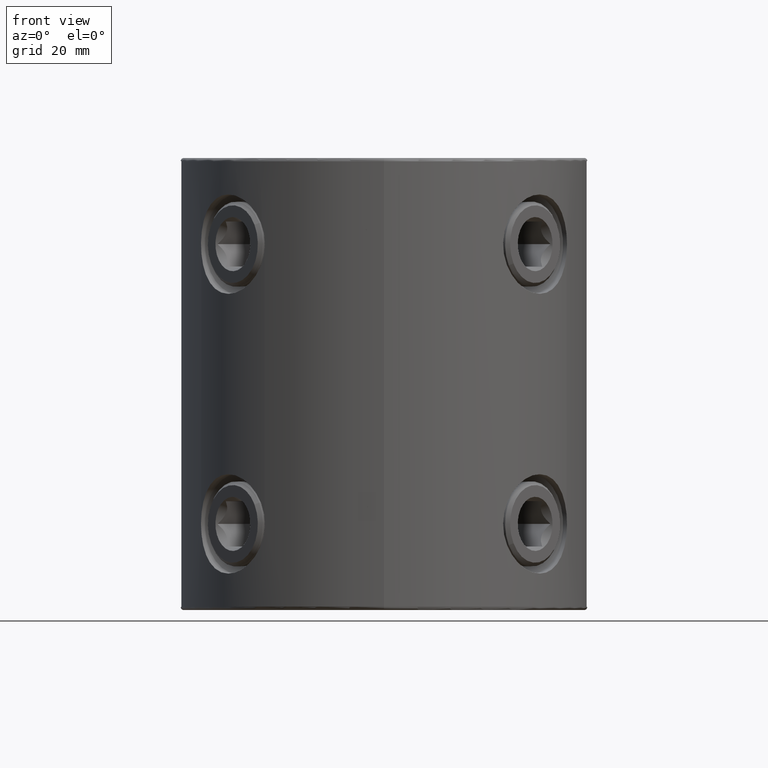
[diagram: clean part render]
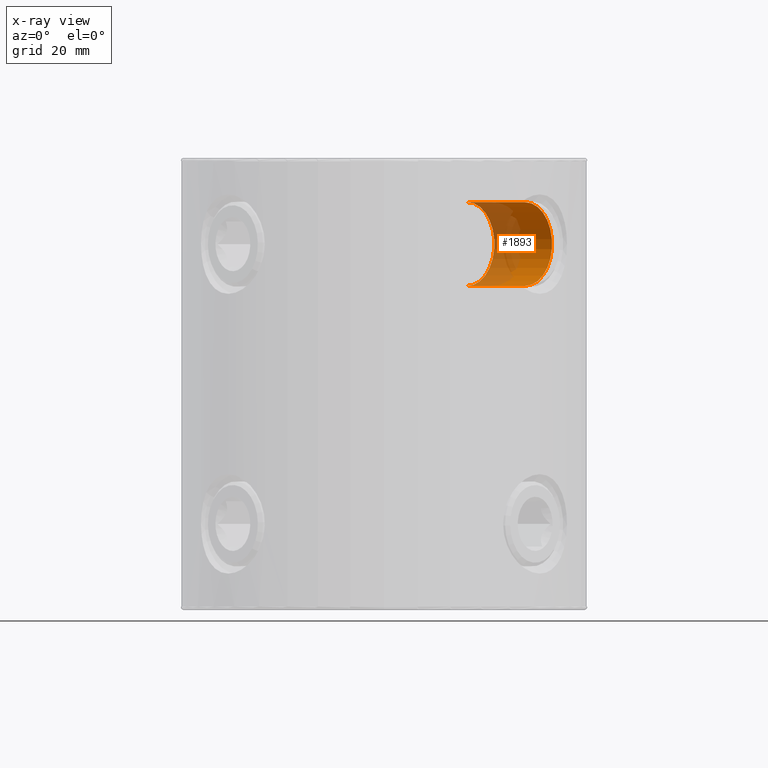
[diagram: x-ray — body ghosted, one internal face saturated and labeled with its STEP entity id]
A machine part, front view, then the same camera in x-ray: the body is ghosted and one INTERNAL B-rep face — a face not visible from any outside direction — is saturated and labeled: STEP entity #1893.
In plain terms, the highlighted cylindrical surface (partial cylindrical patch) has radius 9.263 mm, axis along (0.766, -0.6428, -0).
Its self-contained STEP definition (entity closure, byte-faithful):
#1429=EDGE_CURVE('NONE',#1575,#2281,#3576,.T.);
#1575=VERTEX_POINT('NONE',#3732);
#1893=ADVANCED_FACE('NONE',(#4094),#4095,.F.);
#1983=EDGE_CURVE('NONE',#1575,#2329,#4196,.T.);
#2281=VERTEX_POINT('NONE',#4530);
#2329=VERTEX_POINT('NONE',#4579);
#2729=VERTEX_POINT('NONE',#5039);
#2853=EDGE_CURVE('NONE',#2329,#2729,#5175,.T.);
#2937=EDGE_CURVE('NONE',#2729,#2281,#5267,.T.);
#3576=LINE('',#6283,#6284);
#3732=CARTESIAN_POINT('',(18.4708636124847,-15.4988948447619,-9.78699999999999));
#4094=FACE_OUTER_BOUND('',#7511,.T.);
#4095=CYLINDRICAL_SURFACE('',#7512,9.263);
#4196=CIRCLE('',#7754,9.26300000000001);
#4530=CARTESIAN_POINT('',(31.2262696348588,-26.2019513336525,-9.78699999999999));
#4579=CARTESIAN_POINT('',(18.4708636124847,-15.4988948447619,-28.313));
#5039=CARTESIAN_POINT('',(31.2262696348588,-26.2019513336525,-28.313));
#5175=LINE('',#9871,#9872);
#5267=CIRCLE('',#10063,9.263);
#6283=CARTESIAN_POINT('',(28.904488536477,-24.253745670326,-9.78699999999999));
#6284=VECTOR('',#11117,1000.0);
#7511=EDGE_LOOP('',(#11736,#11737,#11738,#11739));
#7512=AXIS2_PLACEMENT_3D('',#11740,#11741,#11742);
#7754=AXIS2_PLACEMENT_3D('',#11852,#11853,#11854);
#9871=CARTESIAN_POINT('',(28.904488536477,-24.253745670326,-28.313));
#9872=VECTOR('',#13021,1000.0);
#10063=AXIS2_PLACEMENT_3D('',#13112,#13113,#13114);
#11117=DIRECTION('',(0.766044443118975,-0.642787609686543,-1.46308715247863E-016));
#11736=ORIENTED_EDGE('',*,*,#1983,.T.);
#11737=ORIENTED_EDGE('',*,*,#2853,.T.);
#11738=ORIENTED_EDGE('',*,*,#2937,.T.);
#11739=ORIENTED_EDGE('',*,*,#1429,.F.);
#11740=CARTESIAN_POINT('',(28.904488536477,-24.253745670326,-19.05));
#11741=DIRECTION('',(0.766044443118975,-0.642787609686543,-0.0));
#11742=DIRECTION('',(0.0,0.0,1.0));
#11852=CARTESIAN_POINT('',(18.4708636124847,-15.4988948447619,-19.05));
#11853=DIRECTION('',(-0.766044443118975,0.642787609686543,-3.77626879124201E-016));
#11854=DIRECTION('',(-0.642787609686543,-0.766044443118975,3.62085765666439E-032));
#13021=DIRECTION('',(0.766044443118975,-0.642787609686543,-1.46308715247863E-016));
#13112=CARTESIAN_POINT('',(31.2262696348588,-26.2019513336525,-19.05));
#13113=DIRECTION('',(0.766044443118975,-0.642787609686543,0.0));
#13114=DIRECTION('',(0.0,0.0,1.0));